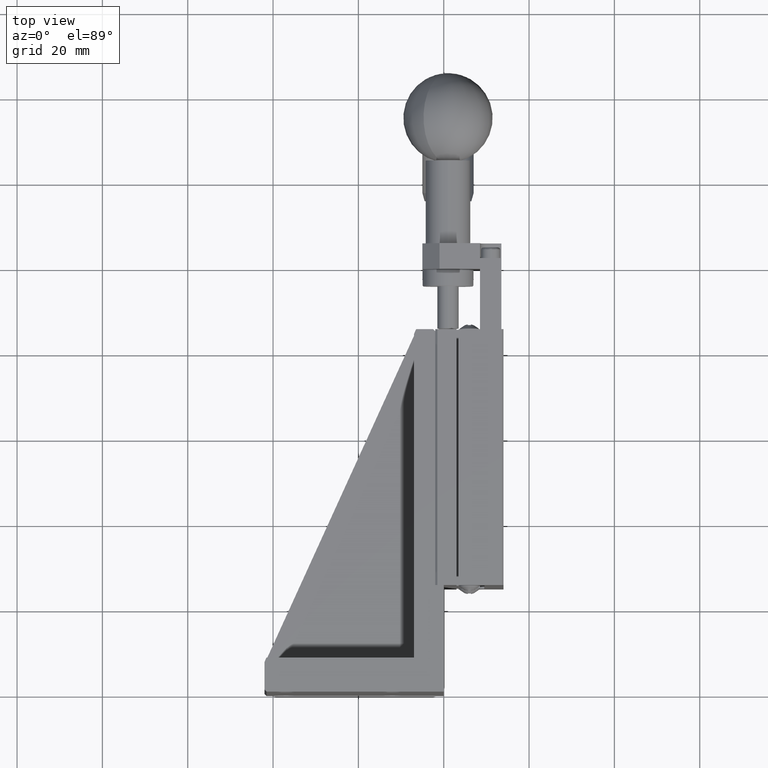
[diagram: clean part render]
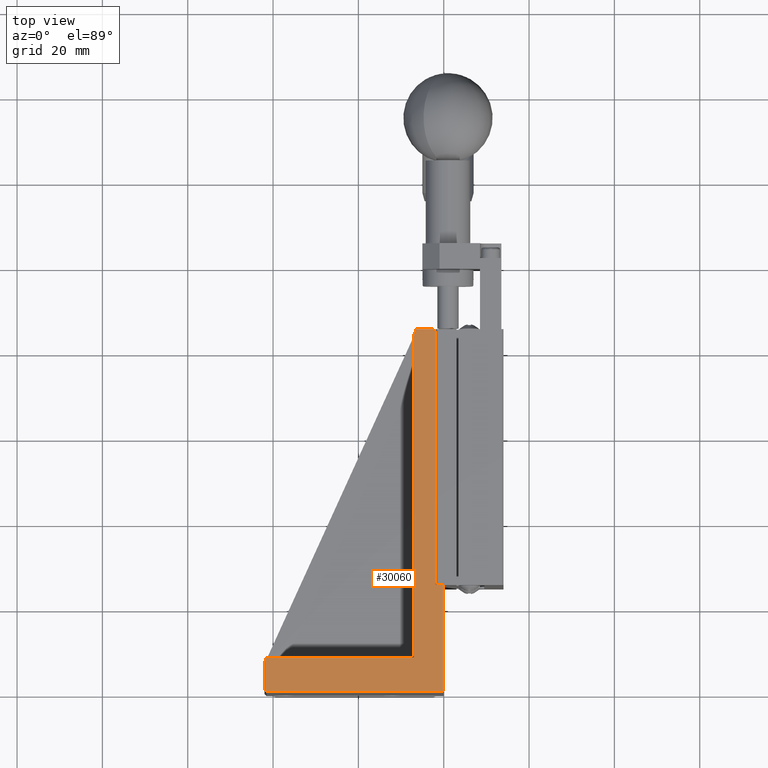
[diagram: same view with one face highlighted and labeled with its STEP entity id]
A machine part, top view. The second image highlights one B-rep face of the part: STEP entity #30060.
In plain terms, the highlighted planar face has unit normal (0, 0, 1).
Its self-contained STEP definition (entity closure, byte-faithful):
#29 = CARTESIAN_POINT ( 'NONE',  ( -6.979999999999987104, 83.84577730265017692, 0.000000000000000000 ) ) ;
#2311 = CARTESIAN_POINT ( 'NONE',  ( 0.000000000000000000, 85.00000000000000000, 0.000000000000000000 ) ) ;
#5077 = ORIENTED_EDGE ( 'NONE', *, *, #78931, .T. ) ;
#5841 = ORIENTED_EDGE ( 'NONE', *, *, #71125, .T. ) ;
#6147 = CARTESIAN_POINT ( 'NONE',  ( -2.000000000000000888, 84.50000000000001421, 0.000000000000000000 ) ) ;
#7122 = CARTESIAN_POINT ( 'NONE',  ( -6.454000000000011283, 85.00000000000000000, 0.000000000000000000 ) ) ;
#7493 = CARTESIAN_POINT ( 'NONE',  ( -42.00000000000000000, 0.4999999999999998890, 0.000000000000000000 ) ) ;
#8282 = EDGE_CURVE ( 'NONE', #84372, #10747, #22879, .T. ) ;
#9054 = DIRECTION ( 'NONE',  ( -0.4146869836513700225, -0.9099641232433992588, 0.000000000000000000 ) ) ;
#9590 = CARTESIAN_POINT ( 'NONE',  ( -2.000000000000000000, 0.000000000000000000, 0.000000000000000000 ) ) ;
#10747 = VERTEX_POINT ( 'NONE', #27493 ) ;
#11171 = VECTOR ( 'NONE', #53056, 1000.000000000000000 ) ;
#11953 = VECTOR ( 'NONE', #9054, 1000.000000000000114 ) ;
#12761 = VERTEX_POINT ( 'NONE', #62591 ) ;
#15157 = CARTESIAN_POINT ( 'NONE',  ( 0.000000000000000000, 0.000000000000000000, 0.000000000000000000 ) ) ;
#15590 = ORIENTED_EDGE ( 'NONE', *, *, #37995, .T. ) ;
#16839 = VERTEX_POINT ( 'NONE', #7493 ) ;
#22879 = LINE ( 'NONE', #7122, #38385 ) ;
#23186 = LINE ( 'NONE', #45161, #87748 ) ;
#23854 = CARTESIAN_POINT ( 'NONE',  ( 0.000000000000000000, 0.000000000000000000, 0.000000000000000000 ) ) ;
#23981 = CARTESIAN_POINT ( 'NONE',  ( -6.980000000000001315, 0.000000000000000000, 0.000000000000000000 ) ) ;
#24644 = ORIENTED_EDGE ( 'NONE', *, *, #58521, .T. ) ;
#25031 = FACE_OUTER_BOUND ( 'NONE', #87807, .T. ) ;
#27493 = CARTESIAN_POINT ( 'NONE',  ( -6.454000000000012172, 85.00000000000000000, 0.000000000000000000 ) ) ;
#28463 = ORIENTED_EDGE ( 'NONE', *, *, #59996, .T. ) ;
#29552 = PLANE ( 'NONE',  #60930 ) ;
#29743 = LINE ( 'NONE', #9590, #82168 ) ;
#30060 = ADVANCED_FACE ( 'NONE', ( #25031 ), #29552, .T. ) ;
#30624 = CARTESIAN_POINT ( 'NONE',  ( -41.54428205128210294, 7.999999999999989342, 0.000000000000000000 ) ) ;
#30797 = EDGE_CURVE ( 'NONE', #12761, #16839, #39651, .T. ) ;
#31493 = LINE ( 'NONE', #2311, #36681 ) ;
#31546 = VERTEX_POINT ( 'NONE', #88952 ) ;
#33267 = EDGE_CURVE ( 'NONE', #86852, #79551, #74664, .T. ) ;
#35804 = ORIENTED_EDGE ( 'NONE', *, *, #37508, .F. ) ;
#36681 = VECTOR ( 'NONE', #66521, 1000.000000000000000 ) ;
#36916 = VECTOR ( 'NONE', #62764, 1000.000000000000000 ) ;
#37354 = DIRECTION ( 'NONE',  ( -0.000000000000000000, 1.000000000000000000, 0.000000000000000000 ) ) ;
#37508 = EDGE_CURVE ( 'NONE', #61548, #63078, #91960, .T. ) ;
#37995 = EDGE_CURVE ( 'NONE', #79551, #16839, #91141, .T. ) ;
#38385 = VECTOR ( 'NONE', #52058, 1000.000000000000114 ) ;
#39651 = LINE ( 'NONE', #62192, #56419 ) ;
#43381 = ORIENTED_EDGE ( 'NONE', *, *, #8282, .F. ) ;
#45161 = CARTESIAN_POINT ( 'NONE',  ( 0.000000000000000000, 0.000000000000000000, 0.000000000000000000 ) ) ;
#45251 = VECTOR ( 'NONE', #59797, 1000.000000000000000 ) ;
#46176 = CARTESIAN_POINT ( 'NONE',  ( -2.000000000000000000, 25.00000000000000000, 0.000000000000000000 ) ) ;
#46932 = CARTESIAN_POINT ( 'NONE',  ( -2.000000000000000000, 84.50000000000000000, 0.000000000000000000 ) ) ;
#49431 = CARTESIAN_POINT ( 'NONE',  ( -42.00000000000000000, 0.000000000000000000, 0.000000000000000000 ) ) ;
#50308 = ORIENTED_EDGE ( 'NONE', *, *, #94057, .T. ) ;
#52058 = DIRECTION ( 'NONE',  ( 0.4146869836514018304, 0.9099641232433847149, -0.000000000000000000 ) ) ;
#52185 = EDGE_CURVE ( 'NONE', #86852, #81567, #54590, .T. ) ;
#52245 = LINE ( 'NONE', #23981, #93956 ) ;
#52721 = DIRECTION ( 'NONE',  ( 0.000000000000000000, -1.000000000000000000, -0.000000000000000000 ) ) ;
#53056 = DIRECTION ( 'NONE',  ( -0.000000000000000000, 1.000000000000000000, 0.000000000000000000 ) ) ;
#54590 = LINE ( 'NONE', #70884, #36916 ) ;
#56419 = VECTOR ( 'NONE', #83722, 1000.000000000000000 ) ;
#58074 = CARTESIAN_POINT ( 'NONE',  ( 0.000000000000000000, 25.00000000000000000, 0.000000000000000000 ) ) ;
#58521 = EDGE_CURVE ( 'NONE', #31546, #88231, #60298, .T. ) ;
#58863 = CARTESIAN_POINT ( 'NONE',  ( -41.54428205128209584, 7.999999999999986677, 0.000000000000000000 ) ) ;
#59710 = DIRECTION ( 'NONE',  ( 0.000000000000000000, 0.000000000000000000, 1.000000000000000000 ) ) ;
#59797 = DIRECTION ( 'NONE',  ( -1.000000000000000000, -0.000000000000000000, 0.000000000000000000 ) ) ;
#59996 = EDGE_CURVE ( 'NONE', #12761, #31546, #23186, .T. ) ;
#60298 = LINE ( 'NONE', #23854, #11171 ) ;
#60930 = AXIS2_PLACEMENT_3D ( 'NONE', #15157, #59710, #61468 ) ;
#61468 = DIRECTION ( 'NONE',  ( 1.000000000000000000, 0.000000000000000000, -0.000000000000000000 ) ) ;
#61548 = VERTEX_POINT ( 'NONE', #66886 ) ;
#62192 = CARTESIAN_POINT ( 'NONE',  ( -42.00000000000000000, 0.5000000000000000000, 0.000000000000000000 ) ) ;
#62591 = CARTESIAN_POINT ( 'NONE',  ( -41.50000000000000000, 3.388131789017201356E-16, 0.000000000000000000 ) ) ;
#62764 = DIRECTION ( 'NONE',  ( 1.000000000000000000, 0.000000000000000000, -0.000000000000000000 ) ) ;
#63024 = EDGE_CURVE ( 'NONE', #84372, #81567, #52245, .T. ) ;
#63078 = VERTEX_POINT ( 'NONE', #6147 ) ;
#66066 = CARTESIAN_POINT ( 'NONE',  ( 0.000000000000000000, 25.00000000000000000, 0.000000000000000000 ) ) ;
#66521 = DIRECTION ( 'NONE',  ( -1.000000000000000000, -0.000000000000000000, 0.000000000000000000 ) ) ;
#66886 = CARTESIAN_POINT ( 'NONE',  ( -2.500000000000000444, 85.00000000000000000, 0.000000000000000000 ) ) ;
#70829 = ORIENTED_EDGE ( 'NONE', *, *, #63024, .T. ) ;
#70884 = CARTESIAN_POINT ( 'NONE',  ( -6.980000000000001315, 8.000000000000000000, 0.000000000000000000 ) ) ;
#71125 = EDGE_CURVE ( 'NONE', #88231, #80136, #88059, .T. ) ;
#71788 = VECTOR ( 'NONE', #91009, 1000.000000000000000 ) ;
#74415 = DIRECTION ( 'NONE',  ( 1.000000000000000000, 0.000000000000000000, -0.000000000000000000 ) ) ;
#74664 = LINE ( 'NONE', #30624, #11953 ) ;
#78931 = EDGE_CURVE ( 'NONE', #80136, #63078, #29743, .T. ) ;
#79544 = ORIENTED_EDGE ( 'NONE', *, *, #33267, .T. ) ;
#79551 = VERTEX_POINT ( 'NONE', #90755 ) ;
#80136 = VERTEX_POINT ( 'NONE', #46176 ) ;
#80165 = ORIENTED_EDGE ( 'NONE', *, *, #52185, .F. ) ;
#81567 = VERTEX_POINT ( 'NONE', #88885 ) ;
#82168 = VECTOR ( 'NONE', #37354, 1000.000000000000000 ) ;
#82333 = ORIENTED_EDGE ( 'NONE', *, *, #30797, .F. ) ;
#83722 = DIRECTION ( 'NONE',  ( -0.7071067811865480168, 0.7071067811865470176, -0.000000000000000000 ) ) ;
#83996 = VECTOR ( 'NONE', #84440, 1000.000000000000000 ) ;
#84372 = VERTEX_POINT ( 'NONE', #29 ) ;
#84440 = DIRECTION ( 'NONE',  ( 0.000000000000000000, -1.000000000000000000, -0.000000000000000000 ) ) ;
#86852 = VERTEX_POINT ( 'NONE', #58863 ) ;
#87748 = VECTOR ( 'NONE', #74415, 1000.000000000000000 ) ;
#87807 = EDGE_LOOP ( 'NONE', ( #50308, #43381, #70829, #80165, #79544, #15590, #82333, #28463, #24644, #5841, #5077, #35804 ) ) ;
#88059 = LINE ( 'NONE', #66066, #45251 ) ;
#88231 = VERTEX_POINT ( 'NONE', #58074 ) ;
#88885 = CARTESIAN_POINT ( 'NONE',  ( -6.980000000000001315, 7.999999999999992895, 0.000000000000000000 ) ) ;
#88952 = CARTESIAN_POINT ( 'NONE',  ( 0.000000000000000000, 0.000000000000000000, 0.000000000000000000 ) ) ;
#90755 = CARTESIAN_POINT ( 'NONE',  ( -42.00000000000000711, 6.999999999999997335, 0.000000000000000000 ) ) ;
#91009 = DIRECTION ( 'NONE',  ( 0.7071067811865470176, -0.7071067811865480168, -0.000000000000000000 ) ) ;
#91141 = LINE ( 'NONE', #49431, #83996 ) ;
#91960 = LINE ( 'NONE', #46932, #71788 ) ;
#93956 = VECTOR ( 'NONE', #52721, 1000.000000000000000 ) ;
#94057 = EDGE_CURVE ( 'NONE', #61548, #10747, #31493, .T. ) ;